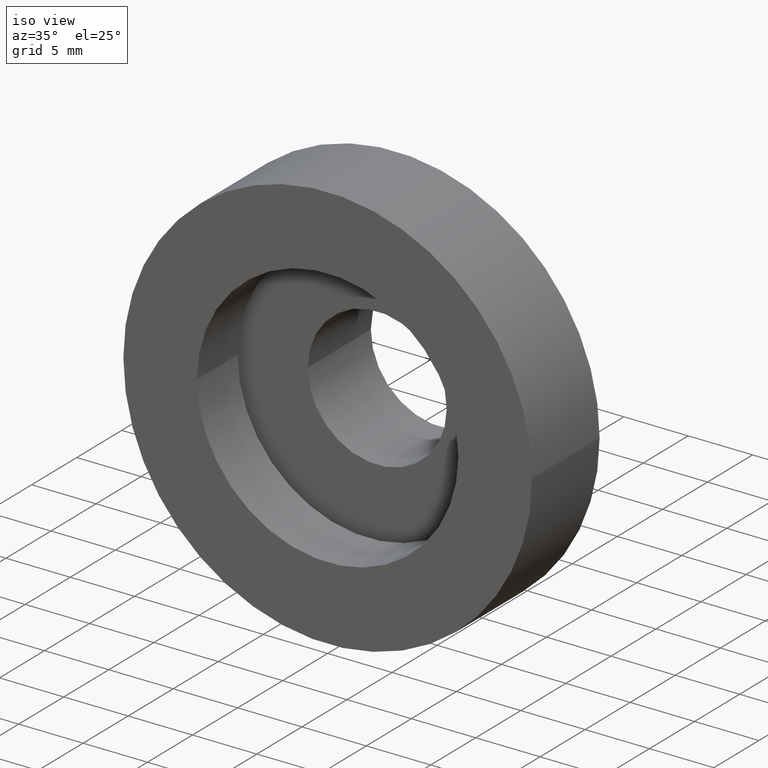
[diagram: clean part render]
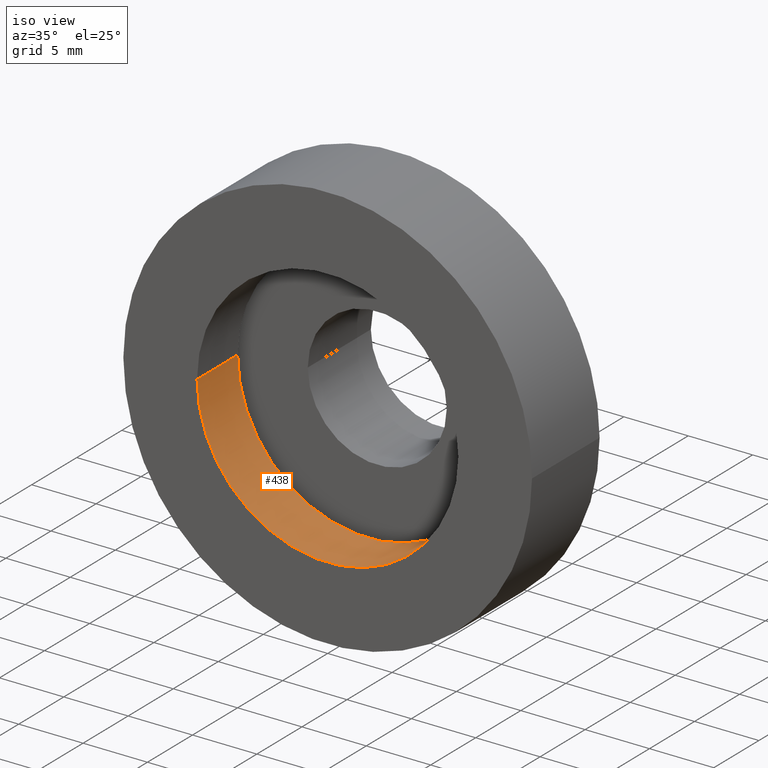
[diagram: same view with one face highlighted and labeled with its STEP entity id]
A machine part, iso view. The second image highlights one B-rep face of the part: STEP entity #438.
In plain terms, the highlighted cylindrical surface (partial cylindrical patch) has radius 10.15 mm, axis along (-0, 1, -0).
Its self-contained STEP definition (entity closure, byte-faithful):
#7 = DIRECTION ( 'NONE',  ( -1.000000000000000000, -8.545435842250281000E-017, 0.0000000000000000000 ) ) ;
#22 = CARTESIAN_POINT ( 'NONE',  ( -10.14999999999999900, 4.499999999999994700, 0.0000000000000000000 ) ) ;
#46 = CIRCLE ( 'NONE', #161, 10.15000000000000000 ) ;
#95 = CARTESIAN_POINT ( 'NONE',  ( 10.15000000000000200, 4.499999999999996400, 1.243016501134563700E-015 ) ) ;
#96 = DIRECTION ( 'NONE',  ( -1.224646799147351000E-016, 1.000000000000000000, -0.0000000000000000000 ) ) ;
#99 = CIRCLE ( 'NONE', #478, 10.15000000000000000 ) ;
#101 = DIRECTION ( 'NONE',  ( -1.000000000000000000, -1.224646799147351000E-016, 0.0000000000000000000 ) ) ;
#105 = CARTESIAN_POINT ( 'NONE',  ( 2.067940818438636100E-015, 0.0000000000000000000, 0.0000000000000000000 ) ) ;
#120 = LINE ( 'NONE', #470, #620 ) ;
#140 = EDGE_LOOP ( 'NONE', ( #325, #477, #187, #342 ) ) ;
#143 = CARTESIAN_POINT ( 'NONE',  ( 10.15000000000000000, 16.88601823708207700, 1.243016501134563700E-015 ) ) ;
#153 = CYLINDRICAL_SURFACE ( 'NONE', #602, 10.15000000000000000 ) ;
#161 = AXIS2_PLACEMENT_3D ( 'NONE', #105, #492, #101 ) ;
#167 = EDGE_CURVE ( 'NONE', #559, #277, #120, .T. ) ;
#187 = ORIENTED_EDGE ( 'NONE', *, *, #568, .T. ) ;
#188 = VERTEX_POINT ( 'NONE', #95 ) ;
#197 = VECTOR ( 'NONE', #531, 1000.000000000000000 ) ;
#253 = EDGE_CURVE ( 'NONE', #300, #188, #538, .T. ) ;
#277 = VERTEX_POINT ( 'NONE', #22 ) ;
#300 = VERTEX_POINT ( 'NONE', #307 ) ;
#307 = CARTESIAN_POINT ( 'NONE',  ( 10.15000000000000200, 1.243016501134561300E-015, 1.243016501134563700E-015 ) ) ;
#324 = DIRECTION ( 'NONE',  ( -1.000000000000000000, 0.0000000000000000000, 0.0000000000000000000 ) ) ;
#325 = ORIENTED_EDGE ( 'NONE', *, *, #550, .F. ) ;
#326 = FACE_OUTER_BOUND ( 'NONE', #140, .T. ) ;
#342 = ORIENTED_EDGE ( 'NONE', *, *, #167, .F. ) ;
#399 = CARTESIAN_POINT ( 'NONE',  ( -10.14999999999999900, -1.243016501134561300E-015, 0.0000000000000000000 ) ) ;
#410 = DIRECTION ( 'NONE',  ( -1.224646799147351000E-016, 1.000000000000000000, -0.0000000000000000000 ) ) ;
#438 = ADVANCED_FACE ( 'NONE', ( #326 ), #153, .F. ) ;
#470 = CARTESIAN_POINT ( 'NONE',  ( -10.15000000000000000, 16.88601823708207700, 0.0000000000000000000 ) ) ;
#477 = ORIENTED_EDGE ( 'NONE', *, *, #253, .T. ) ;
#478 = AXIS2_PLACEMENT_3D ( 'NONE', #542, #544, #7 ) ;
#492 = DIRECTION ( 'NONE',  ( -1.224646799147351000E-016, 1.000000000000000000, -0.0000000000000000000 ) ) ;
#531 = DIRECTION ( 'NONE',  ( -1.224646799147351000E-016, 1.000000000000000000, -0.0000000000000000000 ) ) ;
#538 = LINE ( 'NONE', #143, #197 ) ;
#542 = CARTESIAN_POINT ( 'NONE',  ( 1.516849758822328500E-015, 4.499999999999995600, 0.0000000000000000000 ) ) ;
#544 = DIRECTION ( 'NONE',  ( -1.224646799147351000E-016, 1.000000000000000000, -0.0000000000000000000 ) ) ;
#545 = CARTESIAN_POINT ( 'NONE',  ( 0.0000000000000000000, 16.88601823708207700, 0.0000000000000000000 ) ) ;
#550 = EDGE_CURVE ( 'NONE', #300, #559, #46, .T. ) ;
#559 = VERTEX_POINT ( 'NONE', #399 ) ;
#568 = EDGE_CURVE ( 'NONE', #188, #277, #99, .T. ) ;
#602 = AXIS2_PLACEMENT_3D ( 'NONE', #545, #410, #324 ) ;
#620 = VECTOR ( 'NONE', #96, 1000.000000000000000 ) ;